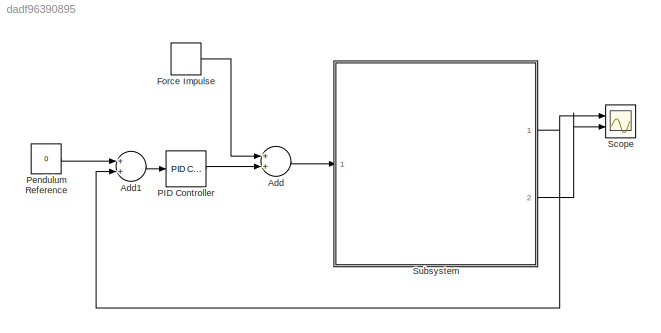
MODEL slx_dadf96390895
KIND model
CONFIG AbsTol = auto
CONFIG FixedStep = auto
CONFIG MaxStep = auto
CONFIG MinStep = auto
CONFIG RelTol = 1e-3
CONFIG SampleTimeConstraint = Unconstrained
CONFIG Solver = VariableStepAuto
CONFIG SolverMode = Auto
CONFIG SolverName = VariableStepAuto
CONFIG StartTime = 0.0
CONFIG StopTime = 10.0
BLOCK [Sum] Add
  InputSameDT = off
  OutDataTypeStr = Inherit: Inherit via internal rule
  Ports = [2, 1]
  SaturateOnIntegerOverflow = off
BLOCK [Sum] Add1
  InputSameDT = off
  OutDataTypeStr = Inherit: Inherit via internal rule
  Ports = [2, 1]
  SaturateOnIntegerOverflow = off
BLOCK [DiscretePulseGenerator] Force Impulse
  Period = 10
  Ports = [0, 1]
  PulseType = Time based
  PulseWidth = 5
BLOCK [Reference] PID Controller  REF=simulink/Continuous/PID Controller
  Ports = [1, 1]
  SourceBlock = simulink/Continuous/PID Controller
  SourceType = PID 1dof
BLOCK [Constant] Pendulum Reference
  Value = 0
BLOCK [Scope] Scope
  NumInputPorts = 2
  Ports = [2]
  ScopeSpecificationString = Simulink.scopes.TimeScopeBlockCfg('CurrentConfiguration', extmgr.ConfigurationSet(extmgr.Configuration('Core','General UI',true),extmgr.Configuration('Core','Source UI',true),extmgr.Configuration('Sources','WiredSimulink',true),extmgr.Configuration('Visuals','Time Domain',true,'SerializedDisplays',{struct('MinYLimReal','-41786785988379616000000000000000000000000000000000.00000','MaxYLimReal','4642...<+1733ch>
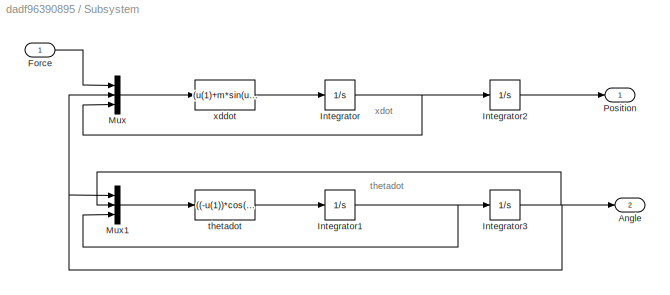
BLOCK [SubSystem] Subsystem
  Ports = [1, 2]
  RequestExecContextInheritance = off
  Variant = off
BLOCK [Outport] Subsystem/Angle
  IconDisplay = Port number
  Port = 2
BLOCK [Inport] Subsystem/Force
  IconDisplay = Port number
BLOCK [Integrator] Subsystem/Integrator
  ContinuousStateAttributes = 'xdot'
  Ports = [1, 1]
BLOCK [Integrator] Subsystem/Integrator1
  ContinuousStateAttributes = 'thetadot'
  InitialCondition = pi
  Ports = [1, 1]
BLOCK [Integrator] Subsystem/Integrator2
  ContinuousStateAttributes = 'x'
  Ports = [1, 1]
BLOCK [Integrator] Subsystem/Integrator3
  ContinuousStateAttributes = 'theta'
  Ports = [1, 1]
BLOCK [Mux] Subsystem/Mux
  DisplayOption = bar
  Inputs = 3
  Ports = [3, 1]
BLOCK [Mux] Subsystem/Mux1
  DisplayOption = bar
  Inputs = 3
  Ports = [3, 1]
BLOCK [Outport] Subsystem/Position
  IconDisplay = Port number
BLOCK [Fcn] Subsystem/thetadot
  Expr = ((-u(1))*cos(u(2))-m*L*((u(3))^2)*sin(u(2))*cos(u(2))+(M+m)*g*sin(u(2)))/(L*(M+m*(sin(u(2)))^2))
BLOCK [Fcn] Subsystem/xddot
  Expr = (u(1)+m*sin(u(2))*(L*((u(3))^2)-g*cos(u(2)))/(M+m*(sin(u(2)))^2))
ANNOTATION Subsystem: thetadot
ANNOTATION Subsystem: xdot
LINE Add1:1 -> PID Controller:1
LINE Add:1 -> Subsystem:1
LINE Force Impulse:1 -> Add:1
LINE PID Controller:1 -> Add:2
LINE Pendulum Reference:1 -> Add1:1
LINE Subsystem/Force:1 -> Subsystem/Mux:1
NET Subsystem/Integrator1:1 -> Subsystem/Integrator3:1, Subsystem/Mux1:3
LINE Subsystem/Integrator2:1 -> Subsystem/Position:1
NET Subsystem/Integrator3:1 -> Subsystem/Angle:1, Subsystem/Mux1:1, Subsystem/Mux1:2, Subsystem/Mux:2
NET Subsystem/Integrator:1 -> Subsystem/Integrator2:1, Subsystem/Mux:3
LINE Subsystem/Mux1:1 -> Subsystem/thetadot:1
LINE Subsystem/Mux:1 -> Subsystem/xddot:1
LINE Subsystem/thetadot:1 -> Subsystem/Integrator1:1
LINE Subsystem/xddot:1 -> Subsystem/Integrator:1
NET Subsystem:1 -> Add1:2, Scope:1
LINE Subsystem:2 -> Scope:2
note: NET lines group one-source signal fan-out (src -> all destinations, sorted); 1:1 wires keep LINE
